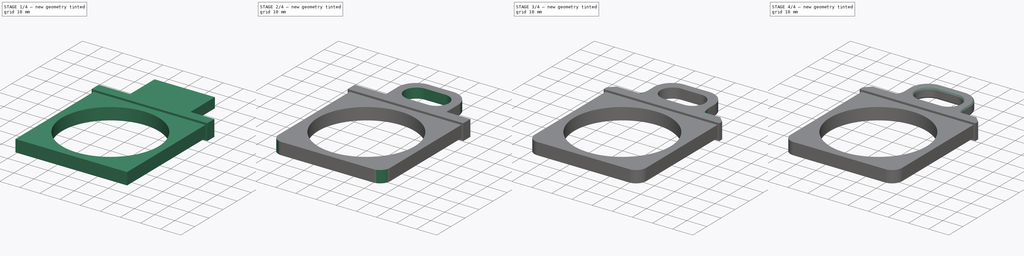
[diagram: build sequence overview — one tinted view per stage of 4, left to right]
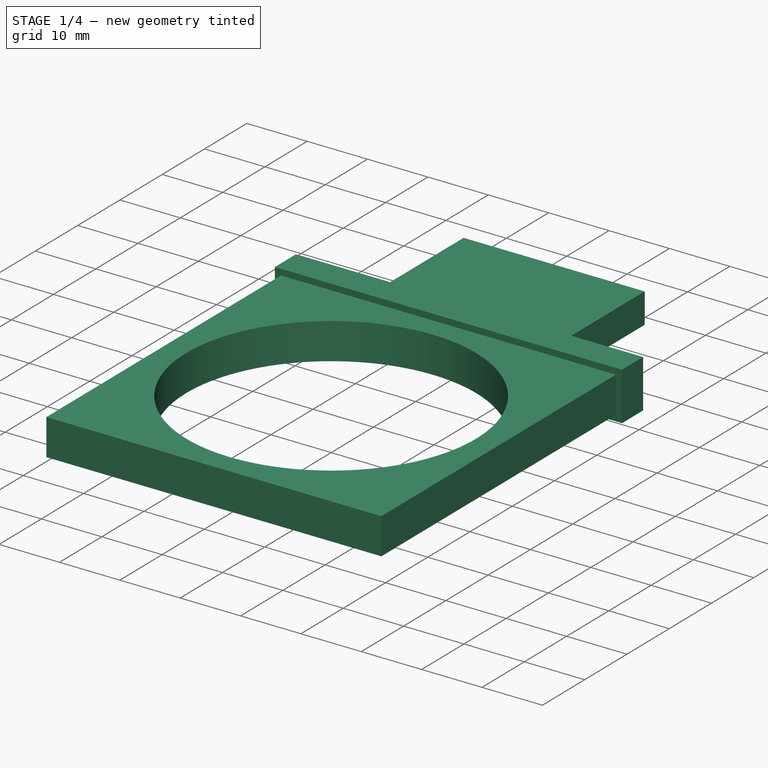
[diagram: stage 1 of 4 — iso view after this stage's code; geometry added in this stage tinted green]
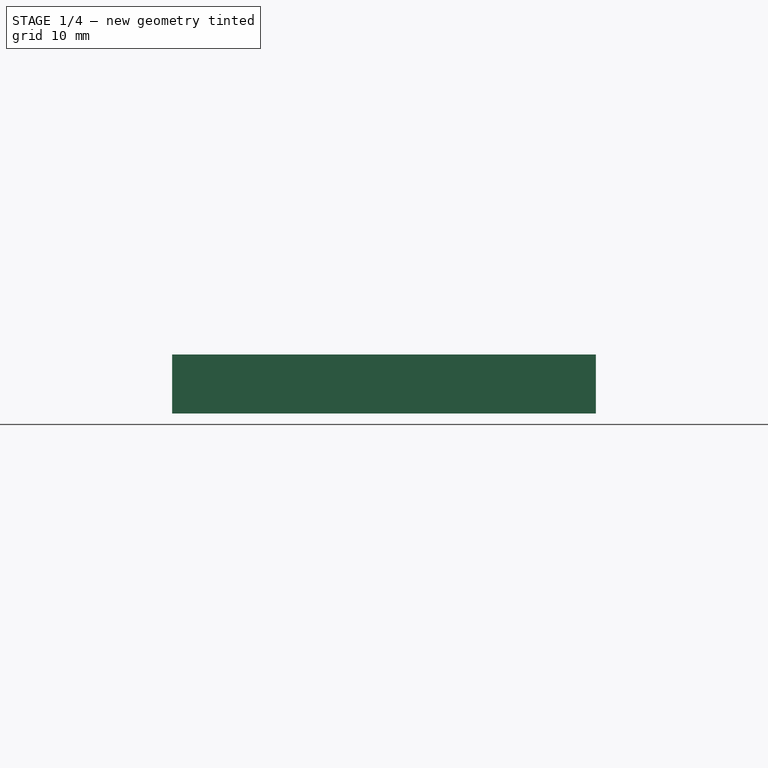
[diagram: stage 1 of 4 — front view after this stage's code; geometry added in this stage tinted green]
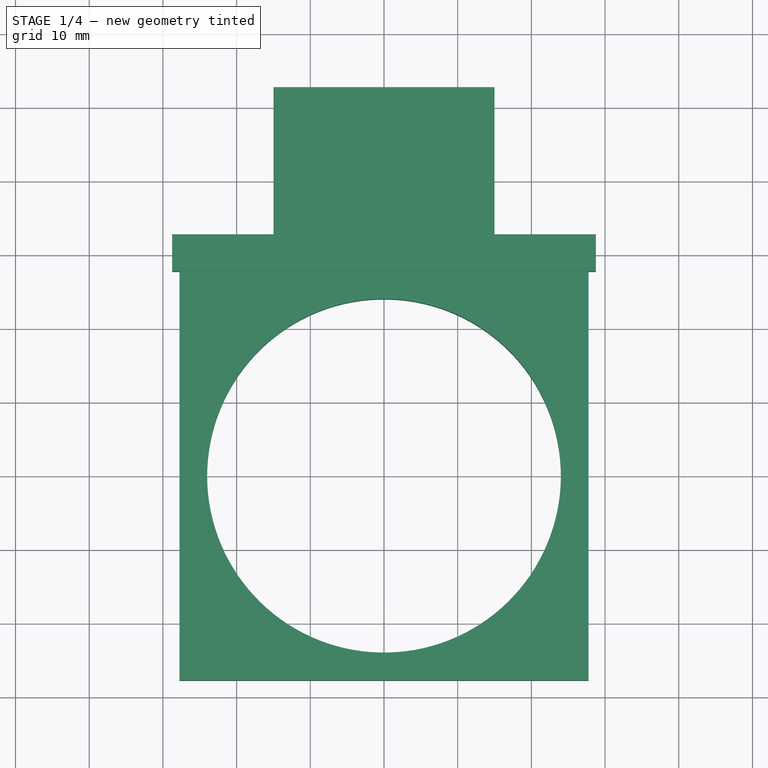
[diagram: stage 1 of 4 — top view after this stage's code; geometry added in this stage tinted green]
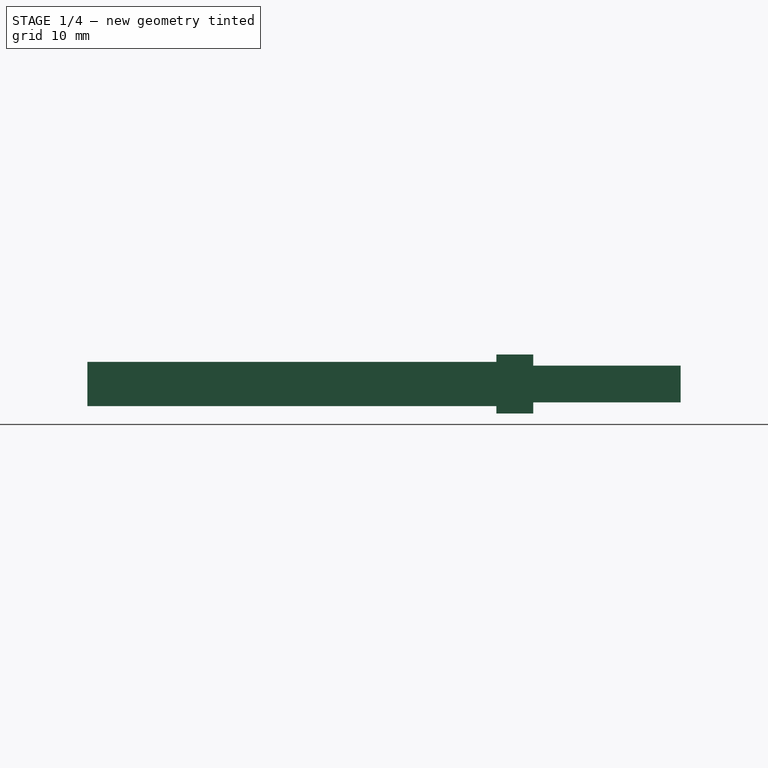
[diagram: stage 1 of 4 — right view after this stage's code; geometry added in this stage tinted green]
FCSTD DOCUMENT  (FreeCAD 0.15R4671 (Git))
Label: Schublade_Leer
License: CreativeCommons Attribution
LicenseURL: http://creativecommons.org/licenses/by/4.0/
objects: PartDesign::Fillet×6, Sketcher::SketchObject×4, PartDesign::Pad×3, PartDesign::Pocket×1, PartDesign::Chamfer×1
note: 19 computed .brp shape members not serialized (recipe doc carries the construction recipe); baked Part::Feature solids carry a one-line shape summary decoded from their .brp

FEATURE [Sketcher::SketchObject] Sketch
  sketch-geometry (6):
    g0: LineSegment StartX=-27.75 StartY=27.75 StartZ=0 EndX=27.75 EndY=27.75 EndZ=0
    g1: LineSegment StartX=27.75 StartY=27.75 StartZ=0 EndX=27.75 EndY=-27.75 EndZ=0
    g2: LineSegment StartX=27.75 StartY=-27.75 StartZ=0 EndX=-27.75 EndY=-27.75 EndZ=0
    g3: LineSegment StartX=-27.75 StartY=-27.75 StartZ=0 EndX=-27.75 EndY=27.75 EndZ=0
    g4: LineSegment [constr] StartX=-27.75 StartY=27.75 StartZ=0 EndX=27.75 EndY=-27.75 EndZ=0
    g5: Circle CenterX=0 CenterY=0 CenterZ=0 NormalX=0 NormalY=0 NormalZ=1 Radius=24
  constraints (15):
    c: Coincident(g0,g1)
    c: Coincident(g1,g2)
    c: Coincident(g2,g3)
    c: Coincident(g3,g0)
    c: Horizontal(g0)
    c: Horizontal(g2)
    c: Vertical(g1)
    c: Vertical(g3)
    c: Coincident(g4,g0)
    c: Coincident(g4,g1)
    c: Symmetric(g4,g4,g-1)
    c: Equal(g3,g0)
    c: DistanceX(g0) = 55.5
    c: Coincident(g5,g-1)
    c: Radius(g5) = 24
FEATURE [PartDesign::Pad] Pad
  Length = 6
  Length2 = 100
  Sketch = -> Sketch
  Type = 0
FEATURE [Sketcher::SketchObject] Sketch001
  ExternalGeometry = -> [Pad]
  Placement = pos=(0,27.75,0) rot=(0,0.707107,0.707107;3.14159rad)
  Support = -> Pad [Face1]
  sketch-geometry (8):
    g0: LineSegment StartX=-28.75 StartY=7 StartZ=0 EndX=28.75 EndY=7 EndZ=0
    g1: LineSegment StartX=28.75 StartY=7 StartZ=0 EndX=28.75 EndY=-1 EndZ=0
    g2: LineSegment StartX=28.75 StartY=-1 StartZ=0 EndX=-28.75 EndY=-1 EndZ=0
    g3: LineSegment StartX=-28.75 StartY=-1 StartZ=0 EndX=-28.75 EndY=7 EndZ=0
    g4: LineSegment [constr] StartX=-27.75 StartY=0 StartZ=0 EndX=-28.75 EndY=0 EndZ=0
    g5: LineSegment [constr] StartX=27.75 StartY=0 StartZ=0 EndX=28.75 EndY=0 EndZ=0
    g6: LineSegment [constr] StartX=-27.75 StartY=7 StartZ=0 EndX=-27.75 EndY=6 EndZ=0
    g7: LineSegment [constr] StartX=27.75 StartY=0 StartZ=0 EndX=27.75 EndY=-1 EndZ=0
  constraints (24):
    c: Coincident(g0,g1)
    c: Coincident(g1,g2)
    c: Coincident(g2,g3)
    c: Coincident(g3,g0)
    c: Horizontal(g0)
    c: Horizontal(g2)
    c: Vertical(g1)
    c: Vertical(g3)
    c: Coincident(g4,g-6)
    c: PointOnObject(g4,g3)
    c: Horizontal(g4)
    c: Coincident(g-6,g5)
    c: PointOnObject(g5,g1)
    c: Horizontal(g5)
    c: Equal(g5,g4)
    c: Equal(g6,g7)
    c: Vertical(g7)
    c: Vertical(g6)
    c: Equal(g6,g4)
    c: PointOnObject(g6,g0)
    c: PointOnObject(g7,g2)
    c: Coincident(g7,g5)
    c: Coincident(g6,g-4)
    c: DistanceY(g6) = -1
FEATURE [PartDesign::Pad] Pad001
  Length = 5
  Length2 = 100
  Sketch = -> Sketch001
  Type = 0
FEATURE [Sketcher::SketchObject] Sketch002
  ExternalGeometry = -> [Pad001]
  Placement = pos=(0,32.75,0) rot=(0,0.707107,0.707107;3.14159rad)
  Support = -> Pad001 [Face12]
  sketch-geometry (8):
    g0: LineSegment StartX=-15 StartY=5.5 StartZ=0 EndX=15 EndY=5.5 EndZ=0
    g1: LineSegment StartX=15 StartY=5.5 StartZ=0 EndX=15 EndY=0.5 EndZ=0
    g2: LineSegment StartX=15 StartY=0.5 StartZ=0 EndX=-15 EndY=0.5 EndZ=0
    g3: LineSegment StartX=-15 StartY=0.5 StartZ=0 EndX=-15 EndY=5.5 EndZ=0
    g4: LineSegment [constr] StartX=-28.75 StartY=7 StartZ=0 EndX=-15 EndY=5.5 EndZ=0
    g5: LineSegment [constr] StartX=-28.75 StartY=-1 StartZ=0 EndX=-15 EndY=0.5 EndZ=0
    g6: LineSegment [constr] StartX=15 StartY=5.5 StartZ=0 EndX=28.75 EndY=7 EndZ=0
    g7: LineSegment [constr] StartX=15 StartY=0.5 StartZ=0 EndX=28.75 EndY=-1 EndZ=0
  constraints (21):
    c: Coincident(g0,g1)
    c: Coincident(g1,g2)
    c: Coincident(g2,g3)
    c: Coincident(g3,g0)
    c: Horizontal(g0)
    c: Horizontal(g2)
    c: Vertical(g1)
    c: Vertical(g3)
    c: DistanceX(g0) = 30
    c: Coincident(g4,g-3)
    c: Coincident(g4,g0)
    c: Coincident(g5,g2)
    c: Coincident(g5,g-4)
    c: Coincident(g7,g1)
    c: Coincident(g7,g-4)
    c: Coincident(g6,g0)
    c: Coincident(g6,g-3)
    c: Equal(g4,g5)
    c: Equal(g5,g6)
    c: Equal(g6,g7)
    c: DistanceY(g1,g7) = -1.5
FEATURE [PartDesign::Pad] Pad002
  Length = 20
  Length2 = 100
  Sketch = -> Sketch002
  Type = 0
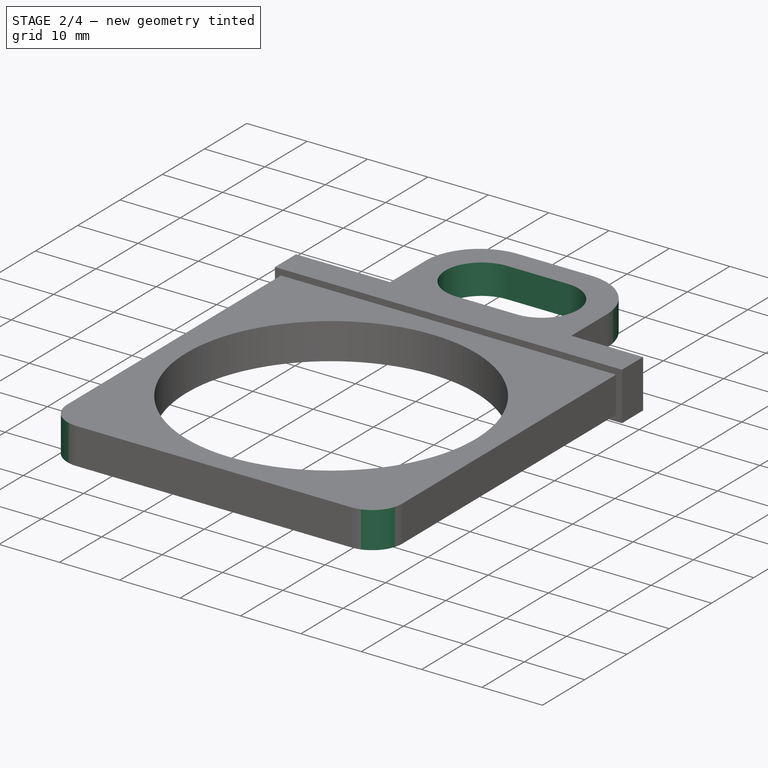
[diagram: stage 2 of 4 — iso view after this stage's code; geometry added in this stage tinted green]
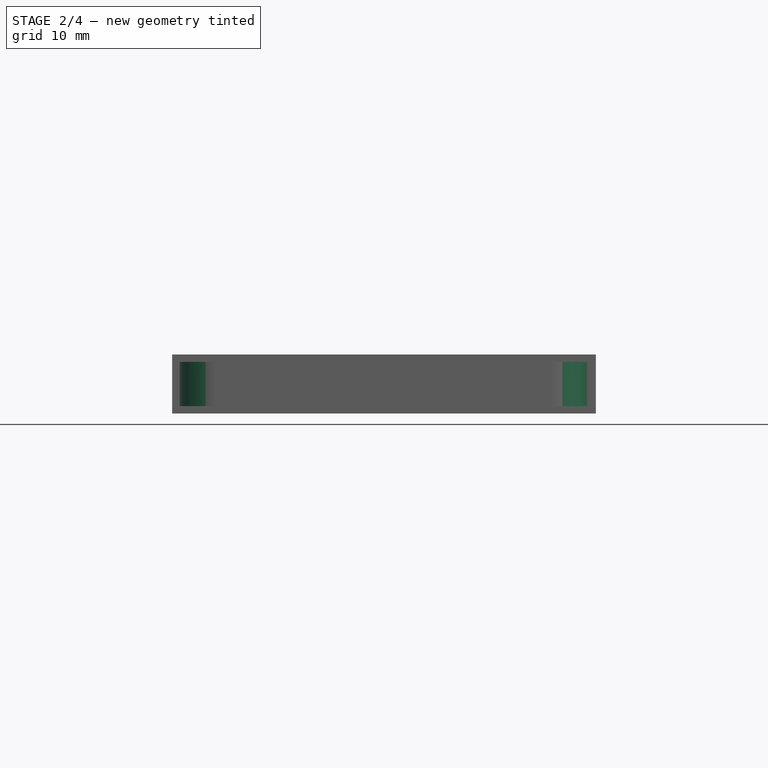
[diagram: stage 2 of 4 — front view after this stage's code; geometry added in this stage tinted green]
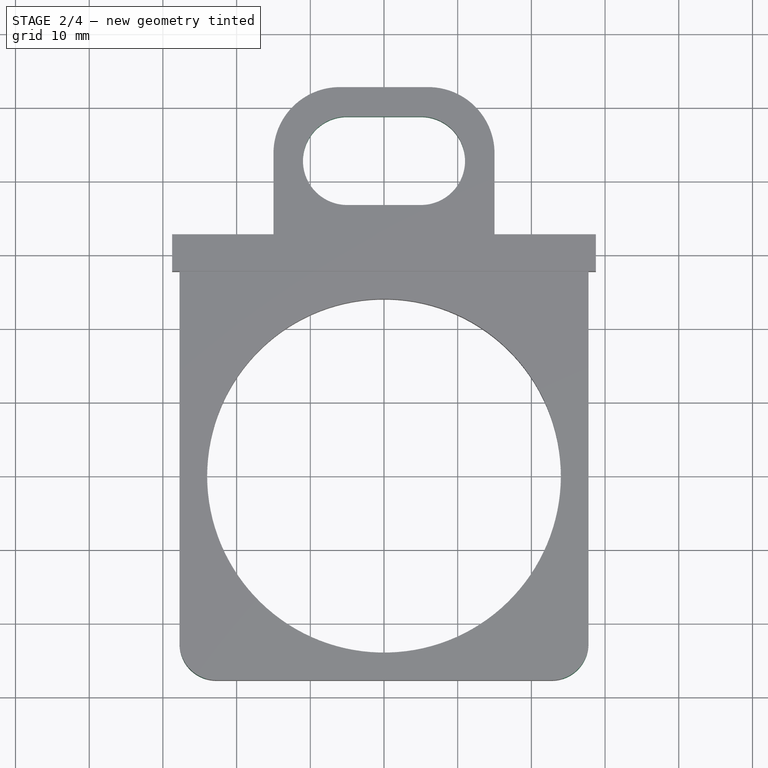
[diagram: stage 2 of 4 — top view after this stage's code; geometry added in this stage tinted green]
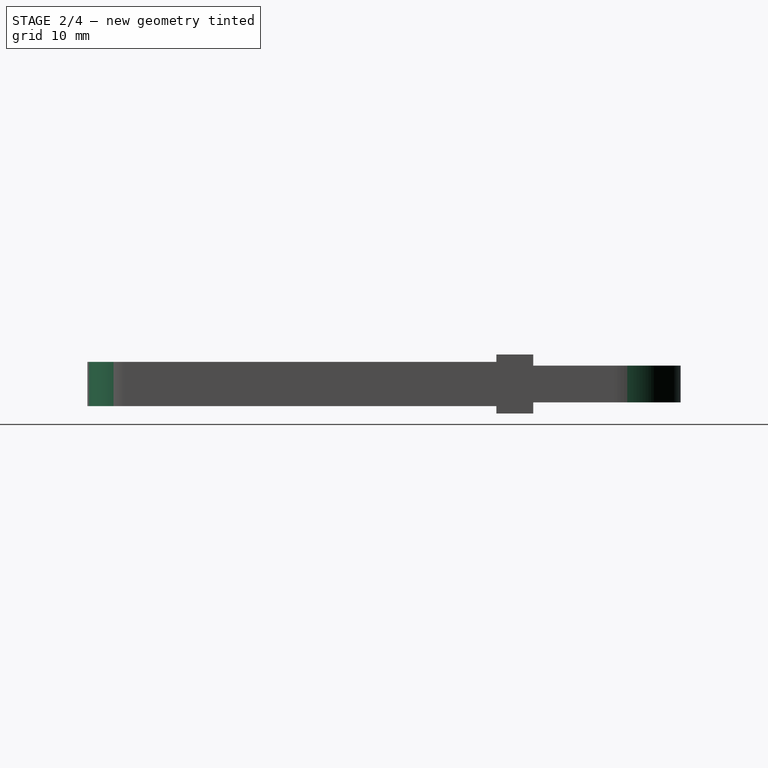
[diagram: stage 2 of 4 — right view after this stage's code; geometry added in this stage tinted green]
FEATURE [PartDesign::Fillet] Fillet
  Base = -> Pad002 [Edge2,Edge1]
  Radius = 5
FEATURE [Sketcher::SketchObject] Sketch003
  ExternalGeometry = -> [Fillet]
  Placement = pos=(0,0,0.5) rot=(1,0,0;3.14159rad)
  Support = -> Fillet [Face16]
  sketch-geometry (10):
    g0: ArcOfCircle CenterX=-5 CenterY=-42.75 CenterZ=0 NormalX=0 NormalY=0 NormalZ=1 Radius=6 StartAngle=1.5708 EndAngle=4.71239
    g1: ArcOfCircle CenterX=5 CenterY=-42.75 CenterZ=0 NormalX=0 NormalY=0 NormalZ=1 Radius=6 StartAngle=4.71239 EndAngle=7.85398
    g2: LineSegment StartX=-5 StartY=-48.75 StartZ=0 EndX=5 EndY=-48.75 EndZ=0
    g3: LineSegment StartX=-5 StartY=-36.75 StartZ=0 EndX=5 EndY=-36.75 EndZ=0
    g4: LineSegment [constr] StartX=-5 StartY=-42.75 StartZ=0 EndX=5 EndY=-42.75 EndZ=0
    g5: LineSegment [constr] StartX=-15 StartY=-32.75 StartZ=0 EndX=-5 EndY=-42.75 EndZ=0
    g6: LineSegment [constr] StartX=5 StartY=-42.75 StartZ=0 EndX=15 EndY=-32.75 EndZ=0
    g7: LineSegment [constr] StartX=-5 StartY=-42.75 StartZ=0 EndX=-15 EndY=-52.75 EndZ=0
    g8: LineSegment [constr] StartX=5 StartY=-42.75 StartZ=0 EndX=15 EndY=-52.75 EndZ=0
    g9: LineSegment [constr] StartX=-15 StartY=-42.75 StartZ=0 EndX=-11 EndY=-42.75 EndZ=0
  constraints (24):
    c: Tangent(g0,g3) = 1.5708
    c: Tangent(g0,g2) = -1.5708
    c: Tangent(g2,g1) = -1.5708
    c: Tangent(g3,g1) = 1.5708
    c: Horizontal(g2)
    c: Equal(g0,g1)
    c: Coincident(g4,g0)
    c: Coincident(g4,g1)
    c: Coincident(g5,g-3)
    c: Coincident(g5,g0)
    c: Coincident(g1,g6)
    c: Coincident(g6,g-4)
    c: Equal(g5,g6)
    c: Coincident(g8,g1)
    c: Coincident(g7,g0)
    c: Coincident(g7,g-3)
    c: Coincident(g8,g-4)
    c: Equal(g6,g8)
    c: Equal(g8,g7)
    c: DistanceY(g1,g8) = -4
    c: PointOnObject(g9,g0)
    c: Symmetric(g-3,g-3,g9)
    c: Horizontal(g9)
    c: DistanceX(g9) = 4
FEATURE [PartDesign::Pocket] Pocket
  Length = 6
  Sketch = -> Sketch003
  Type = 0
FEATURE [PartDesign::Fillet] Fillet001
  Base = -> Pocket [Edge39,Edge48]
  Radius = 9
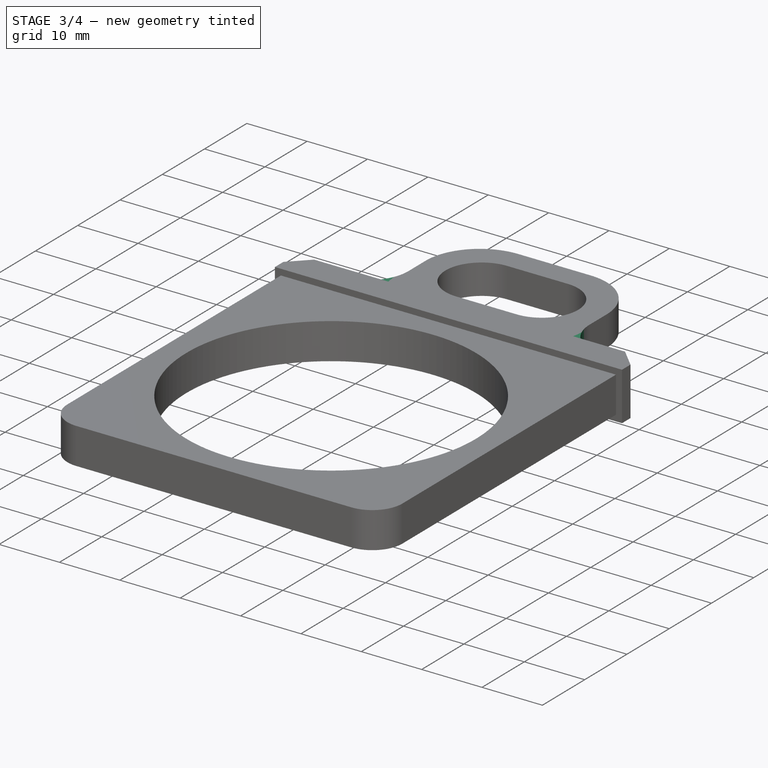
[diagram: stage 3 of 4 — iso view after this stage's code; geometry added in this stage tinted green]
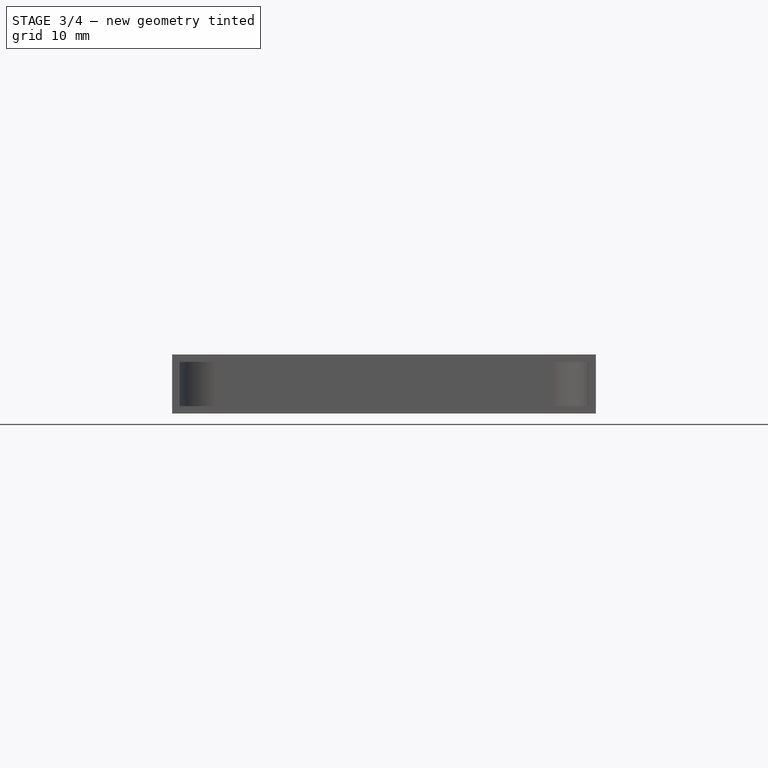
[diagram: stage 3 of 4 — front view after this stage's code; geometry added in this stage tinted green]
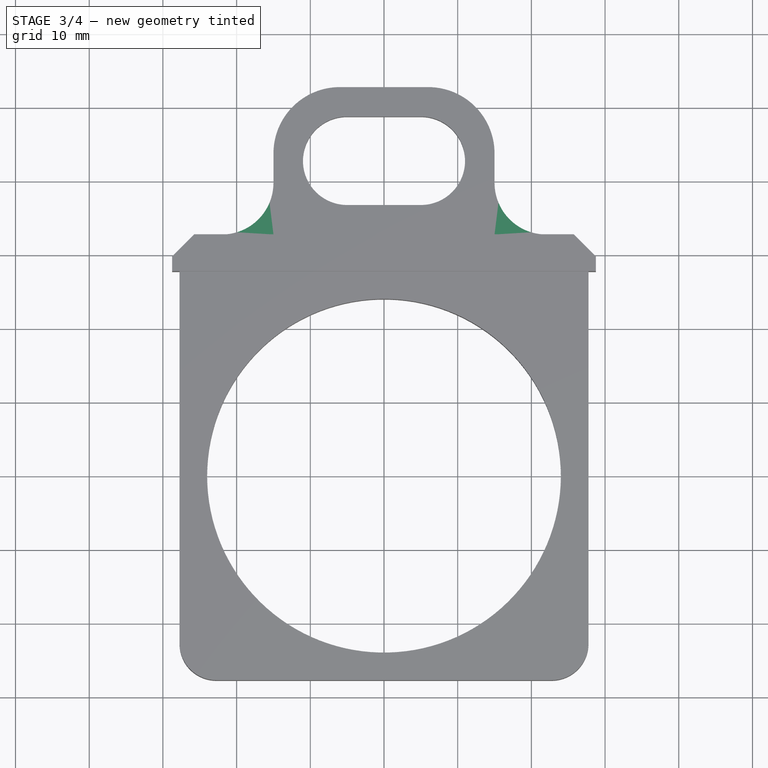
[diagram: stage 3 of 4 — top view after this stage's code; geometry added in this stage tinted green]
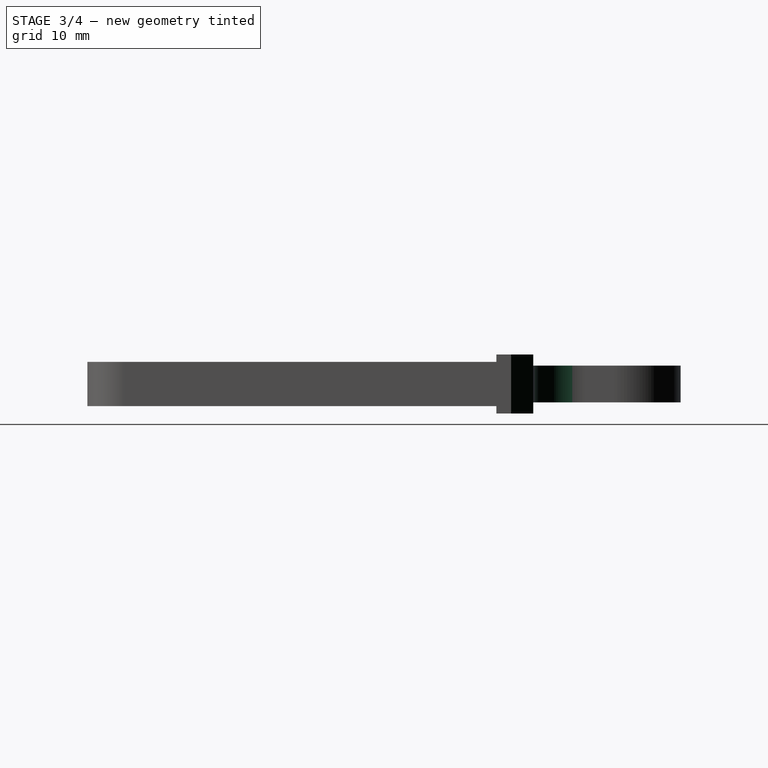
[diagram: stage 3 of 4 — right view after this stage's code; geometry added in this stage tinted green]
FEATURE [PartDesign::Fillet] Fillet002
  Base = -> Fillet001 [Edge3,Edge20]
  Radius = 7
FEATURE [PartDesign::Chamfer] Chamfer
  Base = -> Fillet002 [Edge39,Edge38]
  Size = 3
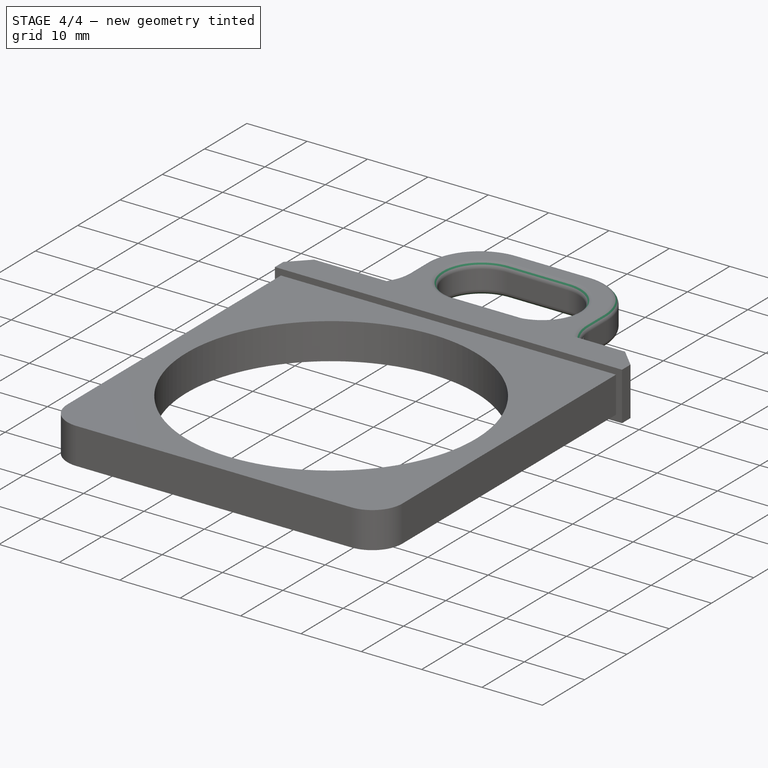
[diagram: stage 4 of 4 — iso view after this stage's code; geometry added in this stage tinted green]
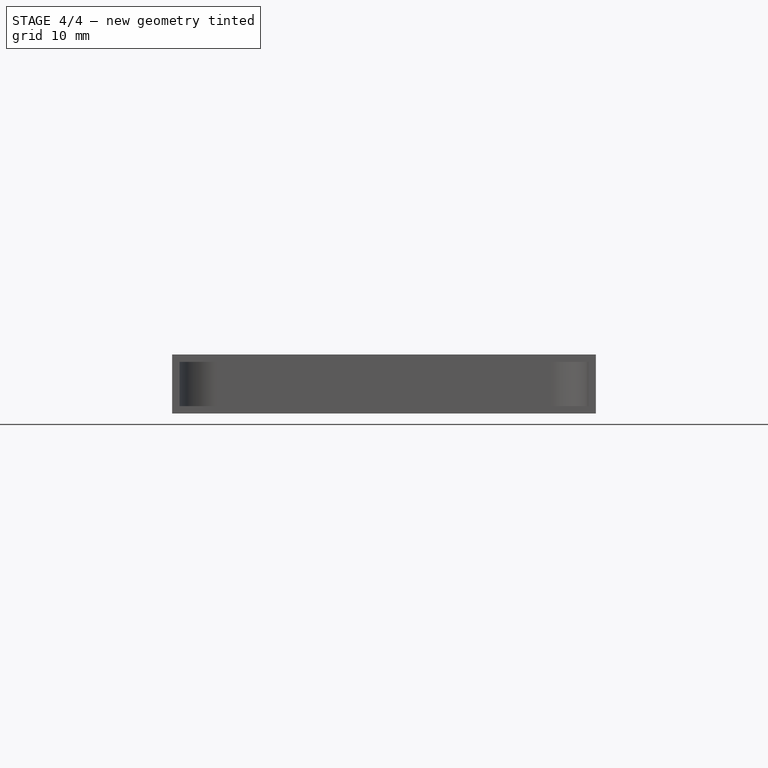
[diagram: stage 4 of 4 — front view after this stage's code; geometry added in this stage tinted green]
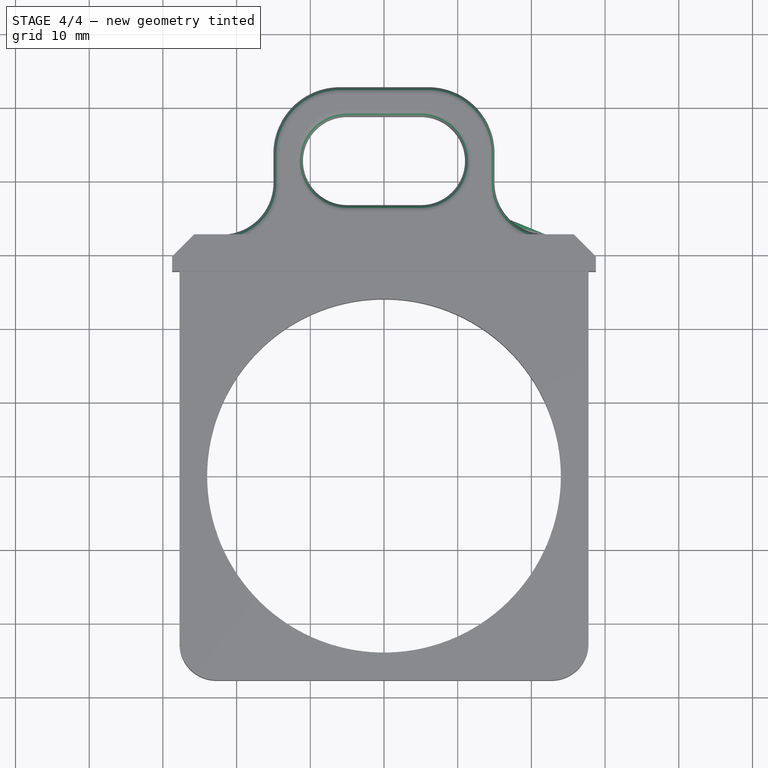
[diagram: stage 4 of 4 — top view after this stage's code; geometry added in this stage tinted green]
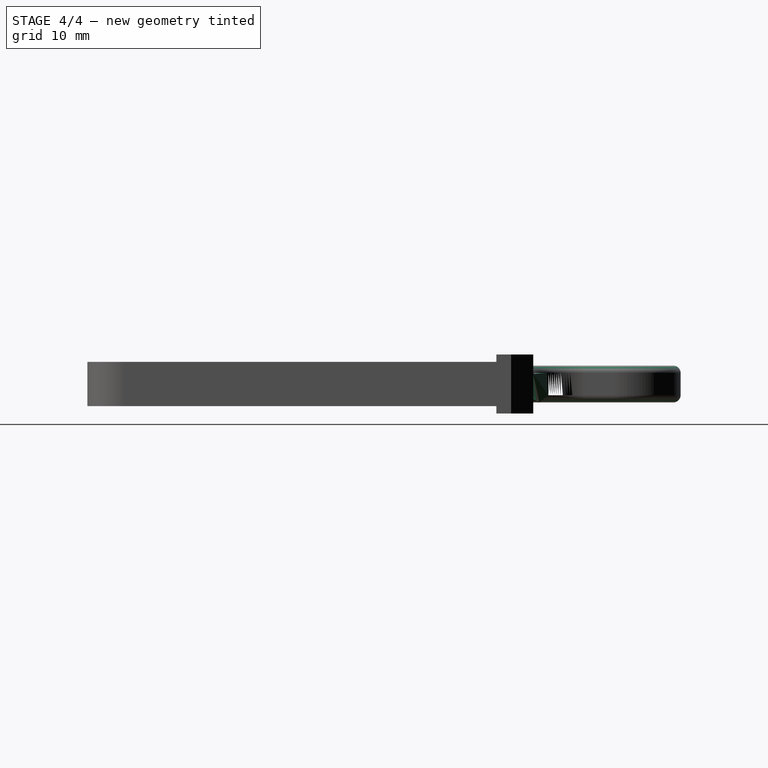
[diagram: stage 4 of 4 — right view after this stage's code; geometry added in this stage tinted green]
FEATURE [PartDesign::Fillet] Fillet003
  Base = -> Chamfer [Edge35,Edge44]
  Radius = 1
FEATURE [PartDesign::Fillet] Fillet004
  Base = -> Fillet003 [Edge26,Edge44,Edge43,Edge41,Edge38]
  Radius = 1
FEATURE [PartDesign::Fillet] Fillet005
  Base = -> Fillet004 [Edge3]
  Radius = 1
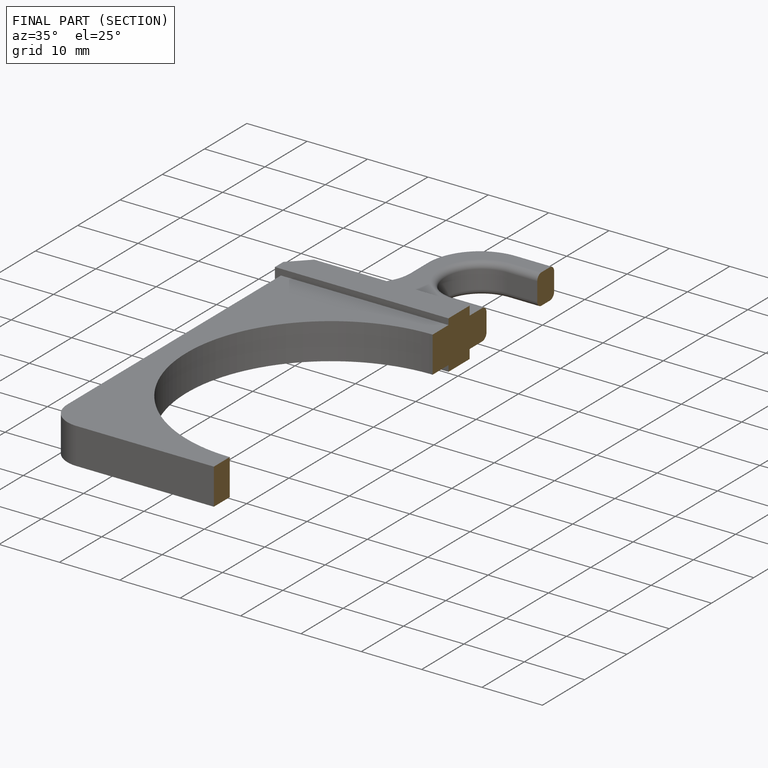
[diagram: finished part — half-section view (interior)]
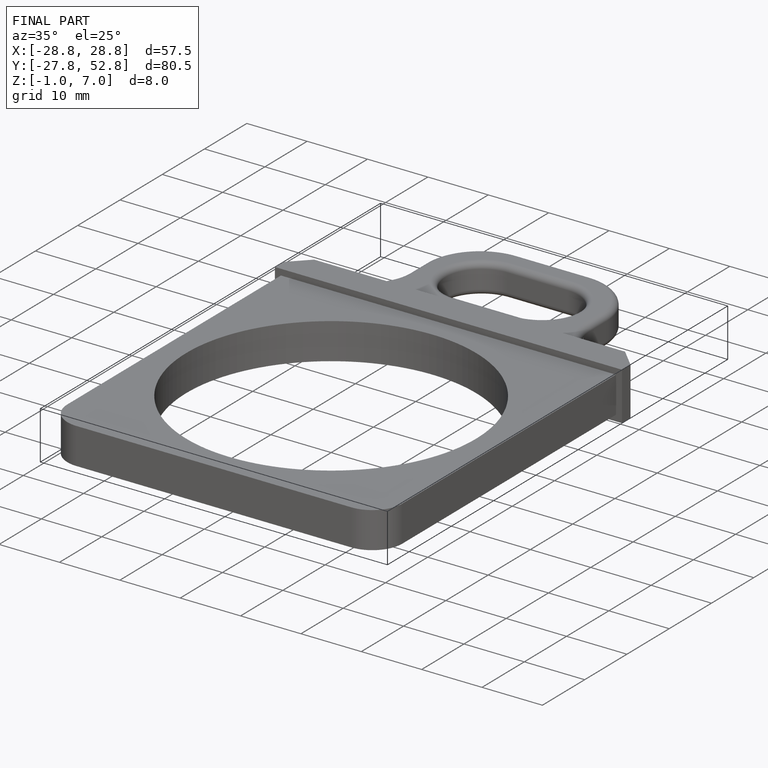
[diagram: finished part — iso view with bounding-box wireframe]
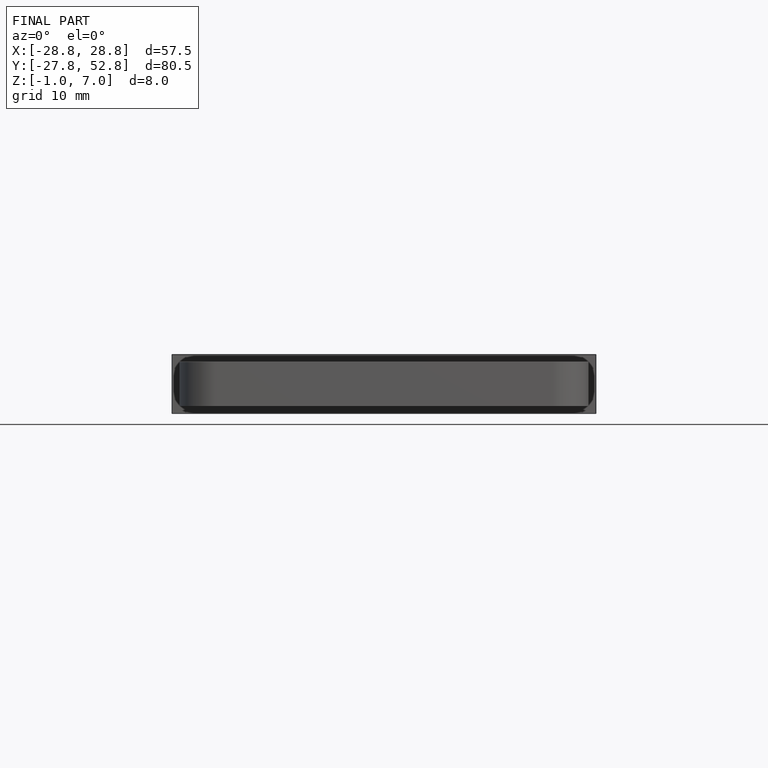
[diagram: finished part — front view with bounding-box wireframe]
